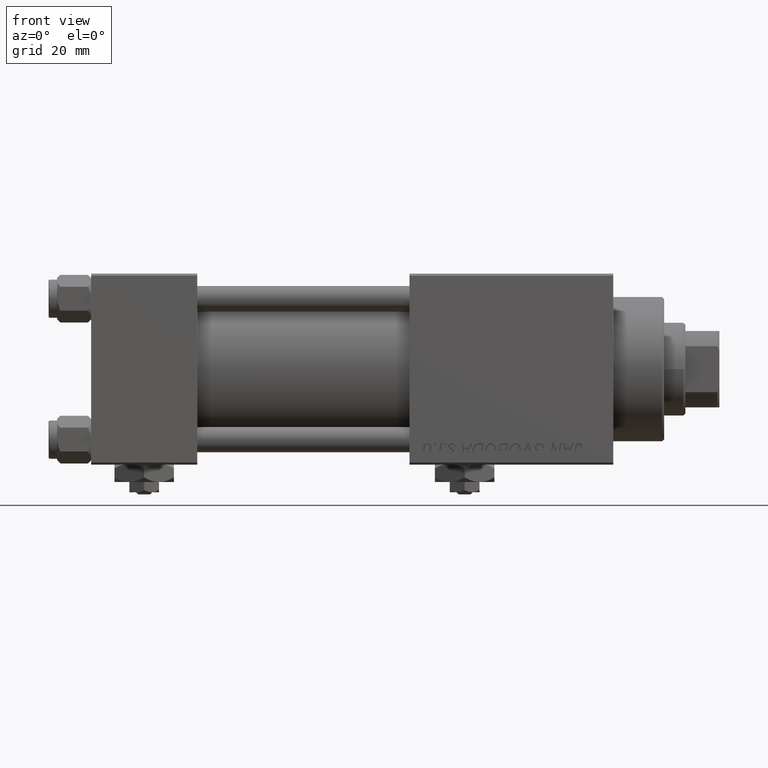
[diagram: clean part render]
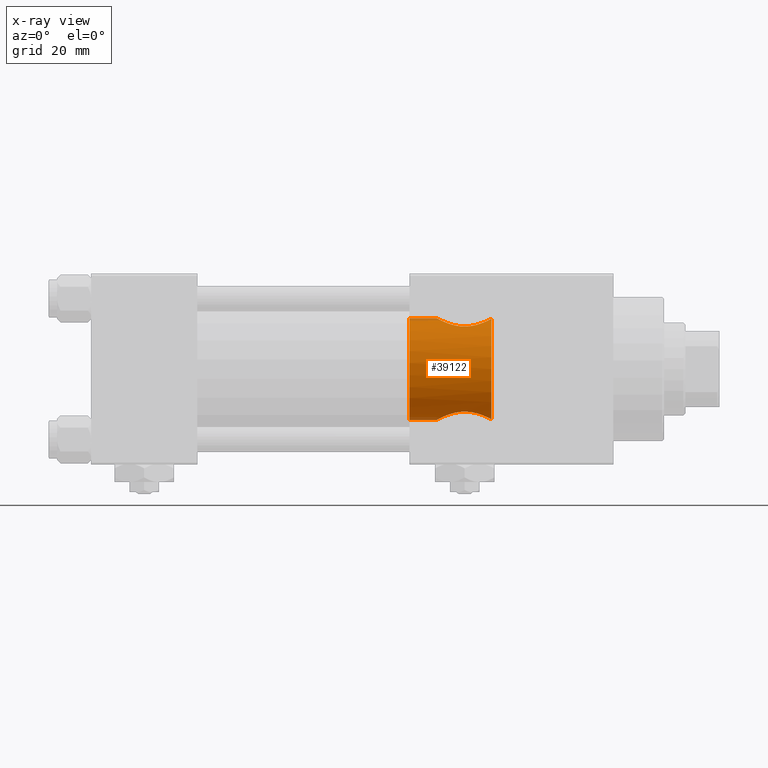
[diagram: x-ray — body ghosted, one internal face saturated and labeled with its STEP entity id]
A machine part, front view, then the same camera in x-ray: the body is ghosted and one INTERNAL B-rep face — a face not visible from any outside direction — is saturated and labeled: STEP entity #39122.
In plain terms, the highlighted cylindrical surface (partial cylindrical patch) has radius 12 mm, axis along (1, 0, 0).
Its self-contained STEP definition (entity closure, byte-faithful):
#206 = CARTESIAN_POINT ( 'NONE',  ( 94.30000000000001137, 0.000000000000000000, 0.000000000000000000 ) ) ;
#1124 = CARTESIAN_POINT ( 'NONE',  ( 93.01155594446152008, -4.281437546902500557, 11.21500550341173863 ) ) ;
#1372 = CARTESIAN_POINT ( 'NONE',  ( 86.84016461310811508, -6.479980380914417637, -10.10005151441031401 ) ) ;
#1379 = CARTESIAN_POINT ( 'NONE',  ( 81.41999999999998749, -0.3987589306235777564, 12.00000000000000178 ) ) ;
#1426 = CARTESIAN_POINT ( 'NONE',  ( 94.30000000000001137, -1.899052395275089067, 11.84878052796995718 ) ) ;
#1647 = CARTESIAN_POINT ( 'NONE',  ( 90.89916650971819934, -5.919832778523199224, -10.43964611535238696 ) ) ;
#1657 = CARTESIAN_POINT ( 'NONE',  ( 92.33470223076432148, -4.954109770454556028, 10.93054897555022542 ) ) ;
#1904 = CARTESIAN_POINT ( 'NONE',  ( 93.01357504179296143, -4.279028506151157707, -11.21591504426861974 ) ) ;
#2152 = CARTESIAN_POINT ( 'NONE',  ( 87.42594531757241327, -6.566788916089255856, -10.04400461243614195 ) ) ;
#2159 = CARTESIAN_POINT ( 'NONE',  ( 92.18893691967821269, -5.078008749725831272, 10.87340577274958164 ) ) ;
#2413 = CARTESIAN_POINT ( 'NONE',  ( 81.42000000000000171, 0.000000000000000000, -12.00000000000000178 ) ) ;
#3390 = DIRECTION ( 'NONE',  ( 0.000000000000000000, 0.000000000000000000, -1.000000000000000000 ) ) ;
#4582 = EDGE_CURVE ( 'NONE', #11529, #20860, #49104, .T. ) ;
#5265 = AXIS2_PLACEMENT_3D ( 'NONE', #25898, #42819, #42047 ) ;
#5346 = CARTESIAN_POINT ( 'NONE',  ( 93.47922161013028131, -3.663950190651517502, 11.43164576559327905 ) ) ;
#5588 = CARTESIAN_POINT ( 'NONE',  ( 84.16950859590494360, -5.353578559402055959, -10.74028609170894377 ) ) ;
#5849 = CARTESIAN_POINT ( 'NONE',  ( 82.15777492485329958, -3.052064219787929300, -11.61055483663801091 ) ) ;
#5858 = CARTESIAN_POINT ( 'NONE',  ( 82.15480420465904388, -3.046487603127518984, 11.61204766141661793 ) ) ;
#6111 = CARTESIAN_POINT ( 'NONE',  ( 82.78671227587224735, -4.032969303580066445, -11.30624050094337107 ) ) ;
#6120 = CARTESIAN_POINT ( 'NONE',  ( 87.84379216343923247, -6.581218343749225319, 10.03432783490170976 ) ) ;
#6552 = CYLINDRICAL_SURFACE ( 'NONE', #5265, 12.00000000000000178 ) ;
#7102 = CIRCLE ( 'NONE', #13874, 12.00000000000000178 ) ;
#7531 = VECTOR ( 'NONE', #39909, 1000.000000000000000 ) ;
#7681 = CARTESIAN_POINT ( 'NONE',  ( 94.30000000000001137, -1.899052395275085958, -11.84878052796996073 ) ) ;
#7941 = CARTESIAN_POINT ( 'NONE',  ( 93.77573915450940945, -3.158281344663283363, -11.57829893973813817 ) ) ;
#9065 = CARTESIAN_POINT ( 'NONE',  ( 81.56395315102130894, -1.383303317825534062, 11.92163510970724971 ) ) ;
#9329 = CARTESIAN_POINT ( 'NONE',  ( 91.88529033867185092, -5.313933040936652752, 10.76007628214585132 ) ) ;
#9448 = CARTESIAN_POINT ( 'NONE',  ( 75.00000000000001421, 0.000000000000000000, 0.000000000000000000 ) ) ;
#9580 = CARTESIAN_POINT ( 'NONE',  ( 91.24096198564761551, -5.739475327356521106, -10.54106122522004618 ) ) ;
#9587 = CARTESIAN_POINT ( 'NONE',  ( 86.26571117503740993, -6.359577037598437954, 10.17731036340830997 ) ) ;
#9828 = CARTESIAN_POINT ( 'NONE',  ( 92.19638879643258633, -5.082606558323552015, -10.87418024783258552 ) ) ;
#10355 = CARTESIAN_POINT ( 'NONE',  ( 81.71555220486855831, -1.959981060626224902, -11.84043277816519435 ) ) ;
#11529 = VERTEX_POINT ( 'NONE', #29162 ) ;
#12623 = DIRECTION ( 'NONE',  ( -1.000000000000000000, 0.000000000000000000, -0.000000000000000000 ) ) ;
#12833 = DIRECTION ( 'NONE',  ( 1.000000000000000000, -0.000000000000000000, -0.000000000000000000 ) ) ;
#13807 = CARTESIAN_POINT ( 'NONE',  ( 84.65300812393267904, -5.668415646265348329, -10.57734621316974710 ) ) ;
#13874 = AXIS2_PLACEMENT_3D ( 'NONE', #206, #19533, #3390 ) ;
#14061 = CARTESIAN_POINT ( 'NONE',  ( 81.45686893222119807, -0.8004003830740871184, -11.97967206595166445 ) ) ;
#14069 = CARTESIAN_POINT ( 'NONE',  ( 92.75461516124364891, -4.564627351372486430, 11.10155823484087279 ) ) ;
#15373 = CARTESIAN_POINT ( 'NONE',  ( 94.03936034568639002, -2.640557128122023922, -11.71129572733442004 ) ) ;
#15860 = AXIS2_PLACEMENT_3D ( 'NONE', #9448, #12623, #40952 ) ;
#17270 = CARTESIAN_POINT ( 'NONE',  ( 88.04338309676340657, -6.582852539851475449, 10.03325114525026862 ) ) ;
#17522 = CARTESIAN_POINT ( 'NONE',  ( 81.42000000000003013, -0.4039441703435516784, -12.00000000000000888 ) ) ;
#17708 = FACE_OUTER_BOUND ( 'NONE', #44360, .T. ) ;
#17803 = CARTESIAN_POINT ( 'NONE',  ( 83.56113700165016667, -4.872522839515975868, 10.96952017908725630 ) ) ;
#17815 = VERTEX_POINT ( 'NONE', #48023 ) ;
#18016 = VERTEX_POINT ( 'NONE', #1426 ) ;
#18043 = CARTESIAN_POINT ( 'NONE',  ( 93.36369266681332135, -3.816360293527020886, -11.37814145276665023 ) ) ;
#18051 = CARTESIAN_POINT ( 'NONE',  ( 91.24045236004087656, -5.739740685217730842, 10.54091119589231518 ) ) ;
#18296 = CARTESIAN_POINT ( 'NONE',  ( 87.82202284816973759, -6.589881777241063610, -10.02864528821623047 ) ) ;
#18302 = CARTESIAN_POINT ( 'NONE',  ( 89.80612331289052008, -6.330331454284490178, 10.19469476613940273 ) ) ;
#19150 = ORIENTED_EDGE ( 'NONE', *, *, #51289, .F. ) ;
#19533 = DIRECTION ( 'NONE',  ( 1.000000000000000000, 0.000000000000000000, 0.000000000000000000 ) ) ;
#20860 = VERTEX_POINT ( 'NONE', #24592 ) ;
#21492 = CARTESIAN_POINT ( 'NONE',  ( 86.64933611902864641, -6.452212448331274608, 10.11798947633288925 ) ) ;
#21748 = CARTESIAN_POINT ( 'NONE',  ( 88.42507150703904983, -6.569335479335062011, -10.04210627302202852 ) ) ;
#22008 = CARTESIAN_POINT ( 'NONE',  ( 92.75679532138978800, -4.562397026557755808, -11.10248705746252718 ) ) ;
#22017 = CARTESIAN_POINT ( 'NONE',  ( 81.71629779899160440, -1.962378304040151011, 11.84003675942547673 ) ) ;
#22268 = CARTESIAN_POINT ( 'NONE',  ( 86.64629950922531521, -6.442290809587590594, -10.12422410259315342 ) ) ;
#22275 = CARTESIAN_POINT ( 'NONE',  ( 82.45420827143600206, -3.546596150375938006, 11.46524487954329530 ) ) ;
#23131 = ORIENTED_EDGE ( 'NONE', *, *, #49823, .T. ) ;
#24592 = CARTESIAN_POINT ( 'NONE',  ( 81.42000000000000171, 0.000000000000000000, -12.00000000000000178 ) ) ;
#25210 = CARTESIAN_POINT ( 'NONE',  ( 81.42000000000000171, 1.469576107744199801E-15, 12.00000000000000178 ) ) ;
#25472 = CARTESIAN_POINT ( 'NONE',  ( 90.18144946988459765, -6.210994763547172504, 10.26783529976223264 ) ) ;
#25721 = CARTESIAN_POINT ( 'NONE',  ( 85.15751407917888116, -5.946783670109370590, -10.42499493473494354 ) ) ;
#25729 = CARTESIAN_POINT ( 'NONE',  ( 89.61262682924856904, -6.382418177023039263, 10.16205234327171070 ) ) ;
#25898 = CARTESIAN_POINT ( 'NONE',  ( 27.55887450304571473, 0.000000000000000000, 0.000000000000000000 ) ) ;
#25982 = CARTESIAN_POINT ( 'NONE',  ( 82.55658498352934771, -3.716977641692834844, -11.41508461762082582 ) ) ;
#26253 = CARTESIAN_POINT ( 'NONE',  ( 82.78969099161481893, -4.023250467623474158, 11.30667168441424941 ) ) ;
#26754 = CARTESIAN_POINT ( 'NONE',  ( 83.56477307068256266, -4.875755771715955866, -10.96806295515661311 ) ) ;
#27170 = EDGE_CURVE ( 'NONE', #40118, #39155, #40710, .T. ) ;
#27718 = CIRCLE ( 'NONE', #15860, 12.00000000000000178 ) ;
#27795 = CARTESIAN_POINT ( 'NONE',  ( 93.47467585420724845, -3.655395224798804410, -11.43099259955086922 ) ) ;
#28796 = CARTESIAN_POINT ( 'NONE',  ( 27.55887450304571473, 1.469576158976824144E-15, 12.00000000000000178 ) ) ;
#28977 = CARTESIAN_POINT ( 'NONE',  ( 27.55887450304571473, 0.000000000000000000, -12.00000000000000178 ) ) ;
#29162 = CARTESIAN_POINT ( 'NONE',  ( 75.00000000000001421, 0.000000000000000000, -12.00000000000000178 ) ) ;
#29174 = CARTESIAN_POINT ( 'NONE',  ( 84.98945031834360009, -5.854084355677485974, 10.47573476137173643 ) ) ;
#29440 = CARTESIAN_POINT ( 'NONE',  ( 85.16320872901937378, -5.940301670670843137, 10.42694291910975046 ) ) ;
#29699 = CARTESIAN_POINT ( 'NONE',  ( 89.79457237478389686, -6.333633107627272274, -10.19264271227010710 ) ) ;
#29950 = CARTESIAN_POINT ( 'NONE',  ( 91.88984072492395683, -5.321141866222918182, -10.75829903036262891 ) ) ;
#29957 = CARTESIAN_POINT ( 'NONE',  ( 85.52064445426731254, -6.098144367882026629, 10.33542248025770860 ) ) ;
#30727 = CARTESIAN_POINT ( 'NONE',  ( 81.77800310767047165, -2.149873960622966873, -11.80734079397296199 ) ) ;
#31247 = CARTESIAN_POINT ( 'NONE',  ( 94.18549061255440336, -2.278930877144365041, -11.78789585387169403 ) ) ;
#31382 = CARTESIAN_POINT ( 'NONE',  ( 94.30000000000001137, -1.899052395275089067, 11.84878052796995718 ) ) ;
#33411 = CARTESIAN_POINT ( 'NONE',  ( 84.16042478392878934, -5.357485016297855118, 10.74100582260112979 ) ) ;
#33669 = CARTESIAN_POINT ( 'NONE',  ( 89.41333164562064439, -6.435514877326045990, -10.12874822989351564 ) ) ;
#33943 = CARTESIAN_POINT ( 'NONE',  ( 82.90943709968694009, -4.173635198167837679, 11.25187747779291314 ) ) ;
#34182 = CARTESIAN_POINT ( 'NONE',  ( 86.06931601402125409, -6.293451861499265831, -10.21753120936648429 ) ) ;
#34190 = CARTESIAN_POINT ( 'NONE',  ( 81.60938533297500896, -1.579837376672096338, 11.89712204425859454 ) ) ;
#34442 = CARTESIAN_POINT ( 'NONE',  ( 88.62675594167740201, -6.553118646610329279, -10.05273712060682989 ) ) ;
#34450 = CARTESIAN_POINT ( 'NONE',  ( 89.03095050380548514, -6.510856269794945916, 10.08062642345327120 ) ) ;
#34712 = CARTESIAN_POINT ( 'NONE',  ( 81.98762677740005245, -2.702402954974835403, -11.69777914628557447 ) ) ;
#36336 = CARTESIAN_POINT ( 'NONE',  ( 94.18477677513206459, -2.281298992827701877, 11.78751630630980607 ) ) ;
#36667 = ORIENTED_EDGE ( 'NONE', *, *, #44235, .F. ) ;
#37385 = CARTESIAN_POINT ( 'NONE',  ( 88.63868773215152430, -6.560960036370746984, 10.04759214048445948 ) ) ;
#37638 = CARTESIAN_POINT ( 'NONE',  ( 81.45594931342614586, -0.7944237263419130501, 11.98017270223897235 ) ) ;
#37891 = CARTESIAN_POINT ( 'NONE',  ( 85.51068841876313797, -6.103641191814396905, -10.33283531230092933 ) ) ;
#38152 = CARTESIAN_POINT ( 'NONE',  ( 86.26132929367520319, -6.349223580012632873, -10.18284756273197367 ) ) ;
#38161 = CARTESIAN_POINT ( 'NONE',  ( 83.28639562774002059, -4.607057570676570180, 11.08471608617320392 ) ) ;
#39122 = ADVANCED_FACE ( 'NONE', ( #17708 ), #6552, .F. ) ;
#39155 = VERTEX_POINT ( 'NONE', #49997 ) ;
#39279 = CARTESIAN_POINT ( 'NONE',  ( 75.00000000000001421, 1.469576158976824144E-15, 12.00000000000000178 ) ) ;
#39909 = DIRECTION ( 'NONE',  ( 1.000000000000000000, -0.000000000000000000, -0.000000000000000000 ) ) ;
#40118 = VERTEX_POINT ( 'NONE', #39279 ) ;
#40710 = LINE ( 'NONE', #28796, #7531 ) ;
#40952 = DIRECTION ( 'NONE',  ( 0.000000000000000000, 0.000000000000000000, 1.000000000000000000 ) ) ;
#41363 = CARTESIAN_POINT ( 'NONE',  ( 90.90036750558618905, -5.918981686858812985, 10.44010423036056778 ) ) ;
#41619 = CARTESIAN_POINT ( 'NONE',  ( 87.24099402833643069, -6.539116494941770164, 10.06186586056366750 ) ) ;
#41875 = CARTESIAN_POINT ( 'NONE',  ( 90.36442671337263732, -6.143566170091887990, 10.30844919719950781 ) ) ;
#42047 = DIRECTION ( 'NONE',  ( 0.000000000000000000, 0.000000000000000000, -1.000000000000000000 ) ) ;
#42128 = CARTESIAN_POINT ( 'NONE',  ( 89.02254417083196358, -6.503121590872923186, -10.08515231352015817 ) ) ;
#42136 = CARTESIAN_POINT ( 'NONE',  ( 82.56220931812610786, -3.710026521228334317, 11.41328489595128914 ) ) ;
#42644 = CARTESIAN_POINT ( 'NONE',  ( 84.01331525193313610, -5.238291972057508517, -10.79713605771933160 ) ) ;
#42819 = DIRECTION ( 'NONE',  ( 1.000000000000000000, -0.000000000000000000, -0.000000000000000000 ) ) ;
#42902 = CARTESIAN_POINT ( 'NONE',  ( 84.48908393322516019, -5.568387213601258878, -10.63050387154098964 ) ) ;
#43167 = CARTESIAN_POINT ( 'NONE',  ( 93.68040522396663050, -3.326708049957805891, -11.53093749921550959 ) ) ;
#44235 = EDGE_CURVE ( 'NONE', #18016, #39155, #45644, .T. ) ;
#44289 = CARTESIAN_POINT ( 'NONE',  ( 93.68578075181308407, -3.334439790209559717, 11.53293512199652149 ) ) ;
#44360 = EDGE_LOOP ( 'NONE', ( #23131, #49874, #36667, #47300, #19150, #48609 ) ) ;
#45332 = CARTESIAN_POINT ( 'NONE',  ( 81.77783752250837779, -2.149251954852693824, 11.80743069880358753 ) ) ;
#45593 = CARTESIAN_POINT ( 'NONE',  ( 91.72673468970526756, -5.426328151739157946, 10.70368258044636356 ) ) ;
#45644 = B_SPLINE_CURVE_WITH_KNOTS ( 'NONE', 3,
 ( #31382, #36336, #47534, #44289, #5346, #1124, #14069, #1657, #2159, #9329, #45593, #18051, #41363, #41875, #25472, #18302, #25729, #34450, #37385, #17270, #6120, #46370, #41619, #21492, #9587, #50598, #29957, #29440, #29174, #50088, #33411, #17803, #38161, #33943, #26253, #42136, #22275, #5858, #46107, #45332, #22017, #34190, #9065, #37638, #1379, #25210 ),
 .UNSPECIFIED., .F., .F.,
 ( 4, 2, 2, 2, 2, 2, 2, 2, 2, 2, 2, 2, 2, 2, 2, 2, 2, 2, 2, 2, 2, 2, 4 ),
 ( 0.000000000000000000, 0.001192670592735514809, 0.002385341185471029617, 0.003578011778206543776, 0.004174347074574301722, 0.004770682370942059235, 0.005963352963677574260, 0.006559688260045349988, 0.007156023556413125715, 0.008348694149148638138, 0.008945029445516394784, 0.009541364741884149694, 0.01073403533461966125, 0.01133037063098741790, 0.01192670592735517281, 0.01311937652009071906, 0.01431204711282626531, 0.01490838240919403930, 0.01550471770556181503, 0.01669738829829738036, 0.01729372359466516823, 0.01789005889103295263, 0.01908272948376852837 ),
 .UNSPECIFIED. ) ;
#45848 = CARTESIAN_POINT ( 'NONE',  ( 90.35751275856038944, -6.146285889658271273, -10.30683402153421468 ) ) ;
#46107 = CARTESIAN_POINT ( 'NONE',  ( 81.98561383412463499, -2.697465198051460789, 11.69882456468388376 ) ) ;
#46177 = VECTOR ( 'NONE', #12833, 1000.000000000000000 ) ;
#46362 = CARTESIAN_POINT ( 'NONE',  ( 81.60882440892129353, -1.577556468639326415, -11.89742365894887755 ) ) ;
#46370 = CARTESIAN_POINT ( 'NONE',  ( 87.44221154047806976, -6.559398433601089984, 10.04860498654694823 ) ) ;
#46708 = EDGE_CURVE ( 'NONE', #18016, #17815, #7102, .T. ) ;
#47300 = ORIENTED_EDGE ( 'NONE', *, *, #46708, .T. ) ;
#47534 = CARTESIAN_POINT ( 'NONE',  ( 94.03789257063225193, -2.643944927135372325, 11.71053527662117055 ) ) ;
#47998 = B_SPLINE_CURVE_WITH_KNOTS ( 'NONE', 3,
 ( #2413, #17522, #14061, #50079, #46362, #10355, #30727, #34712, #5849, #25982, #6111, #50853, #26754, #42644, #5588, #42902, #13807, #25721, #37891, #34182, #38152, #22268, #1372, #2152, #18296, #21748, #34442, #42128, #33669, #29699, #50591, #45848, #1647, #9580, #29950, #9828, #22008, #1904, #18043, #27795, #43167, #7941, #15373, #31247, #7681 ),
 .UNSPECIFIED., .F., .F.,
 ( 4, 2, 2, 2, 2, 2, 2, 2, 2, 2, 2, 2, 2, 2, 1, 2, 2, 2, 2, 2, 2, 2, 4 ),
 ( 1.681528165494595124E-18, 0.001193107414769645821, 0.001789661122154463527, 0.002386214829539280800, 0.003579322244308903202, 0.004772429659078525170, 0.005965537073848148006, 0.006562090781232943378, 0.007158644488617738749, 0.008351751903387332962, 0.008948305610772148283, 0.009544859318156963604, 0.01073796673292663414, 0.01133452044031148936, 0.01193107414769634805, 0.01252762785508120327, 0.01312418156246605849, 0.01431728897723573424, 0.01551039639200540825, 0.01670350380677507879, 0.01730005751415993054, 0.01789661122154477882, 0.01908971863631449967 ),
 .UNSPECIFIED. ) ;
#48023 = CARTESIAN_POINT ( 'NONE',  ( 94.30000000000001137, -1.899052395275085958, -11.84878052796996073 ) ) ;
#48609 = ORIENTED_EDGE ( 'NONE', *, *, #4582, .F. ) ;
#49104 = LINE ( 'NONE', #28977, #46177 ) ;
#49823 = EDGE_CURVE ( 'NONE', #11529, #40118, #27718, .T. ) ;
#49874 = ORIENTED_EDGE ( 'NONE', *, *, #27170, .T. ) ;
#49997 = CARTESIAN_POINT ( 'NONE',  ( 81.42000000000000171, 1.469576107744199801E-15, 12.00000000000000178 ) ) ;
#50079 = CARTESIAN_POINT ( 'NONE',  ( 81.56427789244726512, -1.384587371817339152, -11.92146021698038361 ) ) ;
#50088 = CARTESIAN_POINT ( 'NONE',  ( 84.48210468445526544, -5.574052804316229626, 10.62898043420413252 ) ) ;
#50591 = CARTESIAN_POINT ( 'NONE',  ( 90.17117230666833905, -6.214612551489125281, -10.26564487194540654 ) ) ;
#50598 = CARTESIAN_POINT ( 'NONE',  ( 85.70524222956265703, -6.170038997559282201, 10.29252570320665150 ) ) ;
#50853 = CARTESIAN_POINT ( 'NONE',  ( 83.29004583883940427, -4.610807098320863773, -11.08315720229868617 ) ) ;
#51289 = EDGE_CURVE ( 'NONE', #20860, #17815, #47998, .T. ) ;